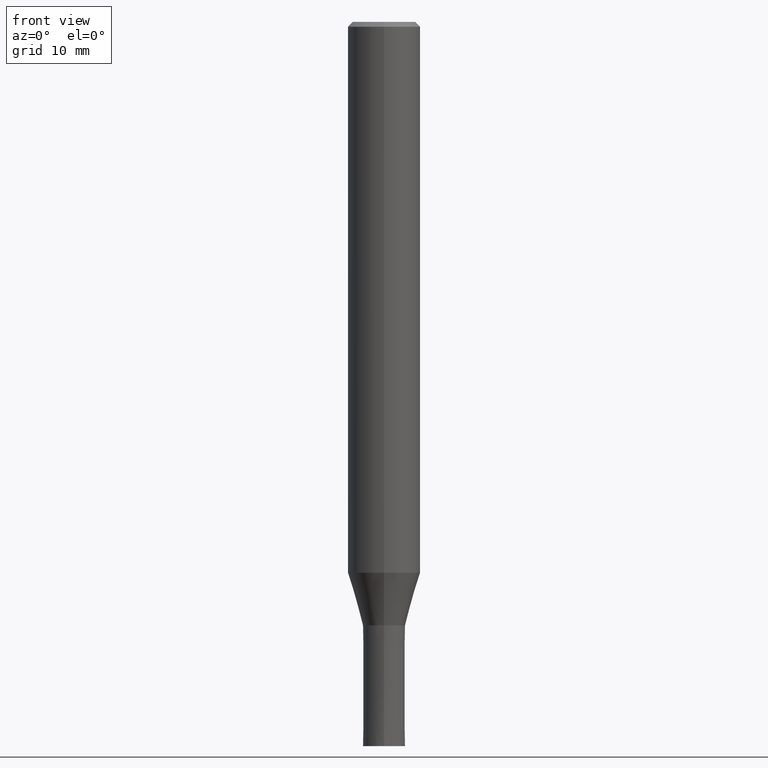
[diagram: clean part render]
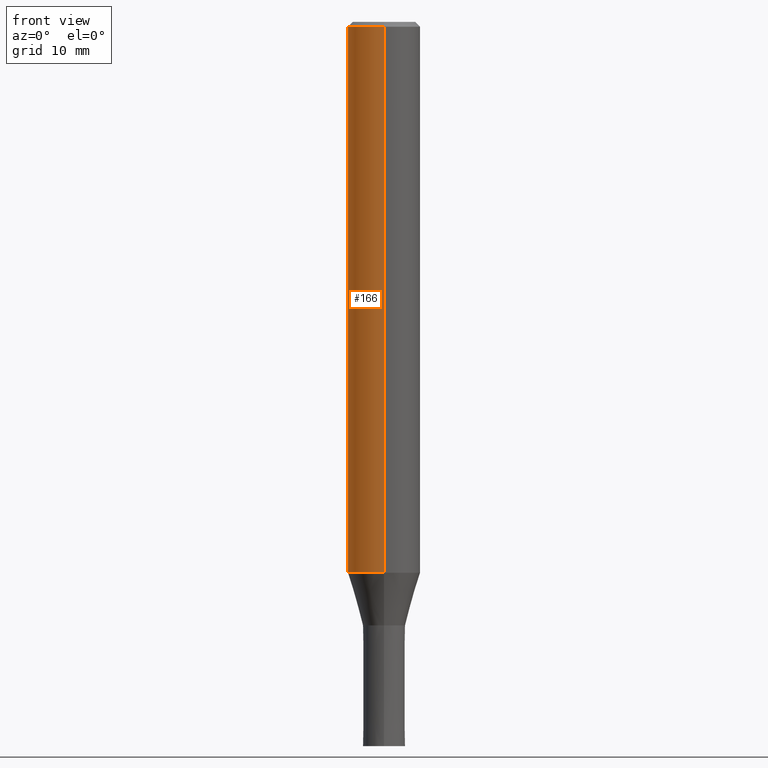
[diagram: same view with one face highlighted and labeled with its STEP entity id]
A machine part, front view. The second image highlights one B-rep face of the part: STEP entity #166.
In plain terms, the highlighted cylindrical surface (edge-blend (fillet) strip) has radius 3 mm, axis along (-0, -0, 1).
Its self-contained STEP definition (entity closure, byte-faithful):
#88=EDGE_CURVE('',#98,#122,#210,.T.);
#92=VERTEX_POINT('',#214);
#94=EDGE_CURVE('',#92,#168,#216,.T.);
#98=VERTEX_POINT('',#220);
#116=EDGE_CURVE('',#122,#168,#242,.T.);
#122=VERTEX_POINT('',#248);
#166=ADVANCED_FACE('',(#297),#298,.T.);
#168=VERTEX_POINT('',#300);
#178=EDGE_CURVE('',#92,#98,#310,.T.);
#210=CIRCLE('',#338,3.0);
#214=CARTESIAN_POINT('',(3.67381906146713E-016,-3.0,-45.641));
#216=CIRCLE('',#346,3.0);
#220=CARTESIAN_POINT('',(3.67381906146713E-016,-3.0,-0.399999999999999));
#242=LINE('',#380,#381);
#248=CARTESIAN_POINT('',(0.0,3.0,-0.399999999999999));
#297=FACE_OUTER_BOUND('',#446,.T.);
#298=CYLINDRICAL_SURFACE('',#447,3.0);
#300=CARTESIAN_POINT('',(0.0,3.0,-45.641));
#310=LINE('',#464,#465);
#338=AXIS2_PLACEMENT_3D('',#482,#483,#484);
#346=AXIS2_PLACEMENT_3D('',#488,#489,#490);
#380=CARTESIAN_POINT('',(-3.67381906146713E-016,3.0,-23.0205));
#381=VECTOR('',#530,1.0);
#446=EDGE_LOOP('',(#595,#596,#597,#598));
#447=AXIS2_PLACEMENT_3D('',#599,#600,#601);
#464=CARTESIAN_POINT('',(3.67381906146713E-016,-3.0,-23.0205));
#465=VECTOR('',#609,1.0);
#482=CARTESIAN_POINT('',(0.0,0.0,-0.399999999999999));
#483=DIRECTION('',(0.0,0.0,-1.0));
#484=DIRECTION('',(0.0,1.0,0.0));
#488=CARTESIAN_POINT('',(0.0,0.0,-45.641));
#489=DIRECTION('',(0.0,0.0,-1.0));
#490=DIRECTION('',(0.0,1.0,0.0));
#530=DIRECTION('',(0.0,0.0,-1.0));
#595=ORIENTED_EDGE('',*,*,#116,.T.);
#596=ORIENTED_EDGE('',*,*,#94,.F.);
#597=ORIENTED_EDGE('',*,*,#178,.T.);
#598=ORIENTED_EDGE('',*,*,#88,.T.);
#599=CARTESIAN_POINT('',(0.0,0.0,-23.0205));
#600=DIRECTION('',(-0.0,-0.0,1.0));
#601=DIRECTION('',(0.0,1.0,0.0));
#609=DIRECTION('',(-0.0,-0.0,1.0));